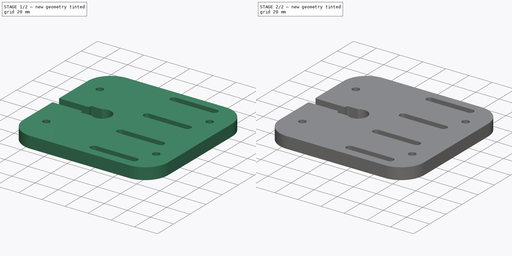
[diagram: build sequence overview — one tinted view per stage of 2, left to right]
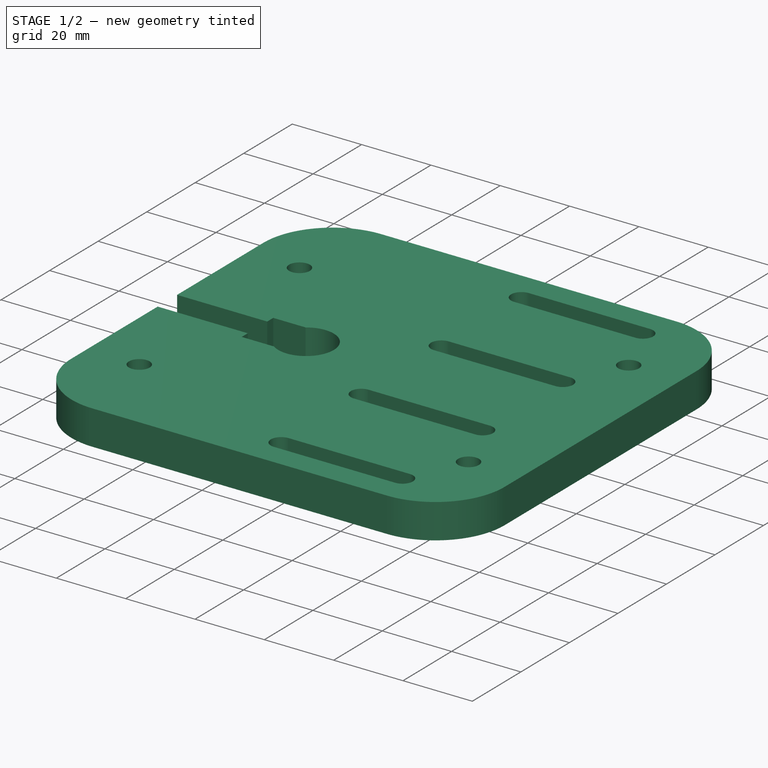
[diagram: stage 1 of 2 — iso view after this stage's code; geometry added in this stage tinted green]
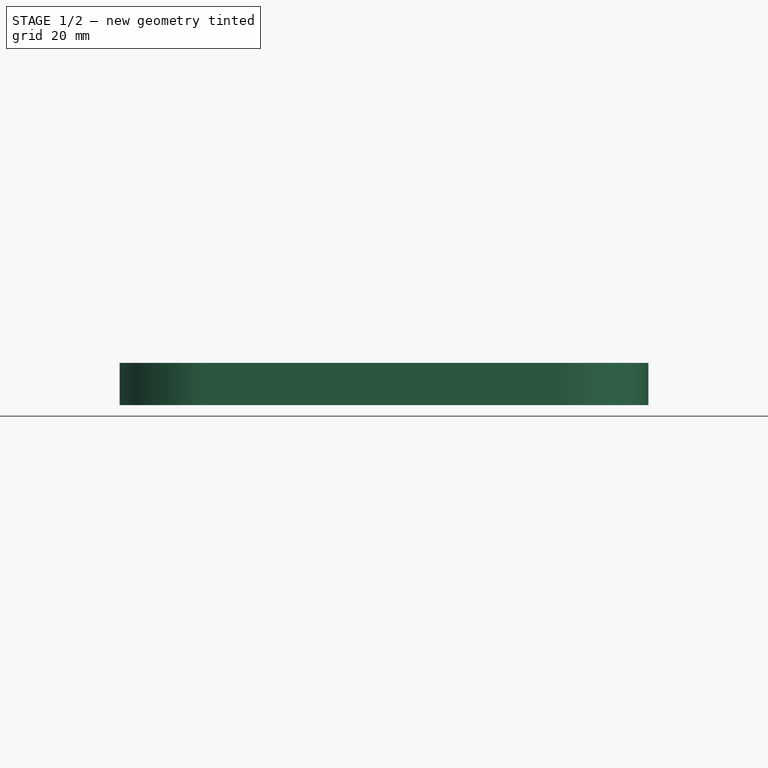
[diagram: stage 1 of 2 — front view after this stage's code; geometry added in this stage tinted green]
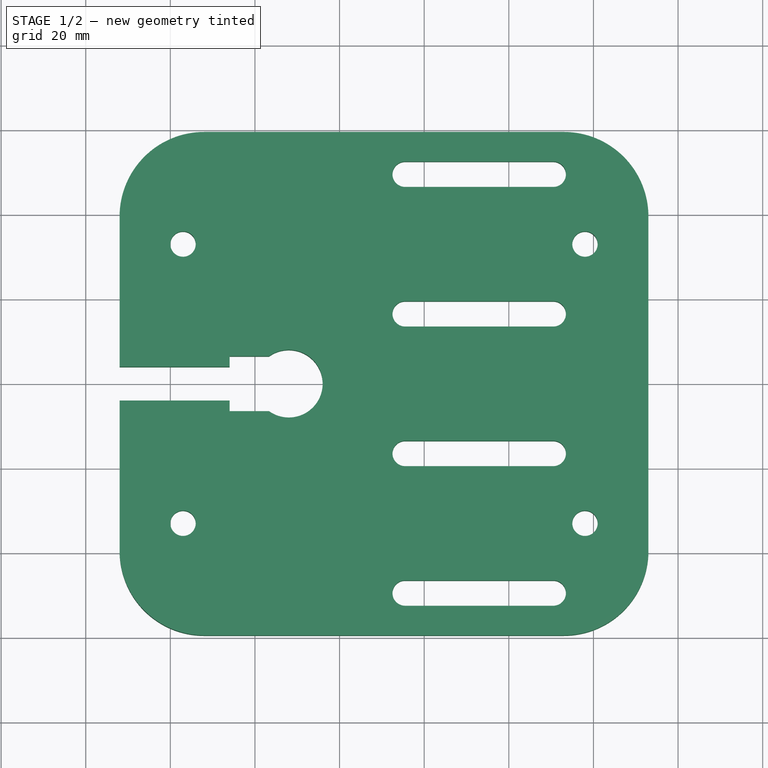
[diagram: stage 1 of 2 — top view after this stage's code; geometry added in this stage tinted green]
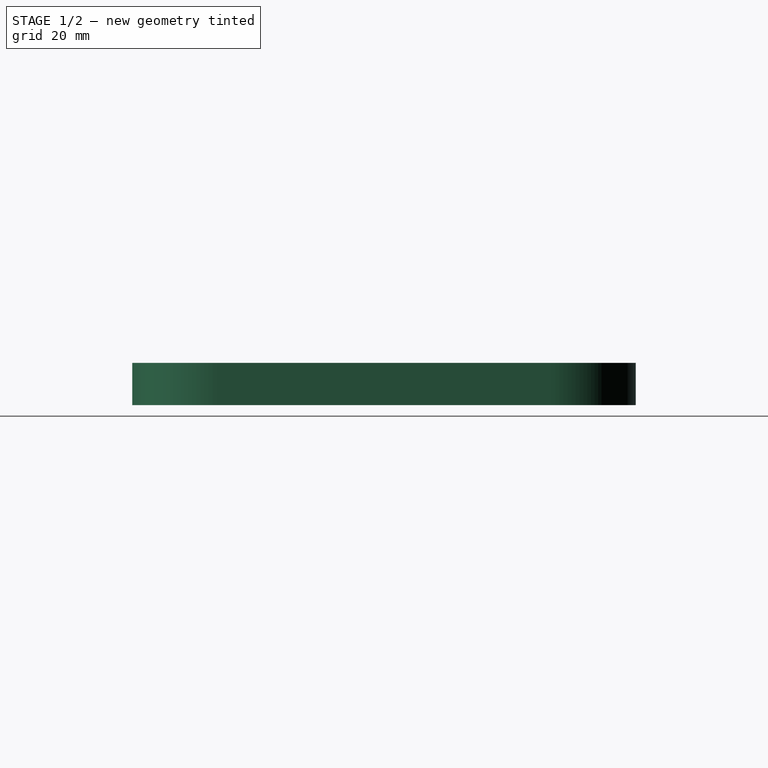
[diagram: stage 1 of 2 — right view after this stage's code; geometry added in this stage tinted green]
FCSTD DOCUMENT  (FreeCAD 0.19R24276 (Git))
Label: bldc_holder_part_5_119x125_M8
License: All rights reserved
LicenseURL: http://en.wikipedia.org/wiki/All_rights_reserved
objects: PartDesign::Fillet×3, Sketcher::SketchObject×1, PartDesign::Pad×1, PartDesign::Body×1
note: 10 computed .brp shape members not serialized (recipe doc carries the construction recipe); baked Part::Feature solids carry a one-line shape summary decoded from their .brp

FEATURE [Sketcher::SketchObject] Sketch
  FullyConstrained = false
  MapMode = 5
  Support = -> [XY_Plane]
  sketch-geometry (99):
    g0: LineSegment StartX=0 StartY=0 StartZ=0 EndX=200 EndY=0 EndZ=0
    g1: LineSegment StartX=200 StartY=0 StartZ=0 EndX=200 EndY=200 EndZ=0
    g2: LineSegment StartX=200 StartY=200 StartZ=0 EndX=0 EndY=200 EndZ=0
    g3: Circle CenterX=136 CenterY=100 CenterZ=0 NormalX=0 NormalY=0 NormalZ=1 AngleXU=0 Radius=15
    g4: Circle CenterX=136 CenterY=100 CenterZ=0 NormalX=0 NormalY=0 NormalZ=1 AngleXU=0 Radius=62.5
    g5: LineSegment StartX=153.678 StartY=117.678 StartZ=0 EndX=118.322 EndY=117.678 EndZ=0
    g6: LineSegment StartX=118.322 StartY=117.678 StartZ=0 EndX=118.322 EndY=82.3223 EndZ=0
    g7: LineSegment StartX=118.322 StartY=82.3223 StartZ=0 EndX=153.678 EndY=82.3223 EndZ=0
    g8: LineSegment StartX=153.678 StartY=82.3223 StartZ=0 EndX=153.678 EndY=117.678 EndZ=0
    g9: Circle CenterX=136 CenterY=100 CenterZ=0 NormalX=0 NormalY=0 NormalZ=1 AngleXU=0 Radius=25
    g10: Circle CenterX=118.322 CenterY=117.678 CenterZ=0 NormalX=0 NormalY=0 NormalZ=1 AngleXU=0 Radius=3
    g11: Circle CenterX=153.678 CenterY=117.678 CenterZ=0 NormalX=0 NormalY=0 NormalZ=1 AngleXU=0 Radius=3
    g12: Circle CenterX=118.322 CenterY=82.3223 CenterZ=0 NormalX=0 NormalY=0 NormalZ=1 AngleXU=0 Radius=3
    g13: Circle CenterX=153.678 CenterY=82.3223 CenterZ=0 NormalX=0 NormalY=0 NormalZ=1 AngleXU=0 Radius=3
    g14: Circle CenterX=40 CenterY=25.5 CenterZ=0 NormalX=0 NormalY=0 NormalZ=1 AngleXU=0 Radius=3
    g15: Circle CenterX=160 CenterY=25.5 CenterZ=0 NormalX=0 NormalY=0 NormalZ=1 AngleXU=0 Radius=3
    g16: Circle CenterX=80 CenterY=25.5 CenterZ=0 NormalX=0 NormalY=0 NormalZ=1 AngleXU=0 Radius=3
    g17: Circle CenterX=120 CenterY=25.5 CenterZ=0 NormalX=0 NormalY=0 NormalZ=1 AngleXU=0 Radius=3
    g18: LineSegment StartX=136 StartY=100 StartZ=0 EndX=13 EndY=100 EndZ=0
    g19: Circle CenterX=40 CenterY=174.5 CenterZ=0 NormalX=0 NormalY=0 NormalZ=1 AngleXU=0 Radius=3
    g20: Circle CenterX=80 CenterY=174.5 CenterZ=0 NormalX=0 NormalY=0 NormalZ=1 AngleXU=0 Radius=3
    g21: Circle CenterX=120 CenterY=174.5 CenterZ=0 NormalX=0 NormalY=0 NormalZ=1 AngleXU=0 Radius=3
    g22: Circle CenterX=160 CenterY=174.5 CenterZ=0 NormalX=0 NormalY=0 NormalZ=1 AngleXU=0 Radius=3
    g23: Circle CenterX=13 CenterY=149.5 CenterZ=0 NormalX=0 NormalY=0 NormalZ=1 AngleXU=0 Radius=3
    g24: Circle CenterX=13 CenterY=116.5 CenterZ=0 NormalX=0 NormalY=0 NormalZ=1 AngleXU=0 Radius=3
    g25: Circle CenterX=13 CenterY=83.5 CenterZ=0 NormalX=0 NormalY=0 NormalZ=1 AngleXU=0 Radius=3
    g26: Circle CenterX=13 CenterY=50.5 CenterZ=0 NormalX=0 NormalY=0 NormalZ=1 AngleXU=0 Radius=3
    g27: LineSegment StartX=13 StartY=100 StartZ=0 EndX=13 EndY=145.429 EndZ=0
    g28: Circle CenterX=187 CenterY=149.5 CenterZ=0 NormalX=0 NormalY=0 NormalZ=1 AngleXU=0 Radius=3
    g29: Circle CenterX=187 CenterY=116.5 CenterZ=0 NormalX=0 NormalY=0 NormalZ=1 AngleXU=0 Radius=3
    g30: Circle CenterX=187 CenterY=83.5 CenterZ=0 NormalX=0 NormalY=0 NormalZ=1 AngleXU=0 Radius=3
    g31: Circle CenterX=187 CenterY=50.5 CenterZ=0 NormalX=0 NormalY=0 NormalZ=1 AngleXU=0 Radius=3
    g32: LineSegment StartX=0 StartY=187.5 StartZ=0 EndX=200 EndY=187.5 EndZ=0
    g33: LineSegment StartX=200 StartY=187.5 StartZ=0 EndX=200 EndY=12.5 EndZ=0
    g34: LineSegment StartX=200 StartY=12.5 StartZ=0 EndX=0 EndY=12.5 EndZ=0
    g35: LineSegment StartX=0 StartY=12.5 StartZ=0 EndX=200 EndY=12.5 EndZ=0
    g36: LineSegment StartX=200 StartY=12.5 StartZ=0 EndX=200 EndY=187.5 EndZ=0
    g37: LineSegment StartX=200 StartY=187.5 StartZ=0 EndX=0 EndY=187.5 EndZ=0
    g38: LineSegment StartX=0 StartY=12.5 StartZ=0 EndX=0 EndY=187.5 EndZ=0
    g39: Circle CenterX=136 CenterY=100 CenterZ=0 NormalX=0 NormalY=0 NormalZ=1 AngleXU=0 Radius=60
    g40: LineSegment StartX=193.924 StartY=177.5 StartZ=0 EndX=6.95574 EndY=177.5 EndZ=0
    g41: LineSegment StartX=6.95574 StartY=177.5 StartZ=0 EndX=6.95574 EndY=187.5 EndZ=0
    g42: LineSegment StartX=6.95574 StartY=187.5 StartZ=0 EndX=193.924 EndY=187.5 EndZ=0
    g43: LineSegment StartX=193.924 StartY=187.5 StartZ=0 EndX=193.924 EndY=177.5 EndZ=0
    g44: LineSegment StartX=191.131 StartY=161.5 StartZ=0 EndX=6.35097 EndY=161.5 EndZ=0
    g45: LineSegment StartX=6.35097 StartY=161.5 StartZ=0 EndX=6.35097 EndY=171.5 EndZ=0
    g46: LineSegment StartX=6.35097 StartY=171.5 StartZ=0 EndX=191.131 EndY=171.5 EndZ=0
    g47: LineSegment StartX=191.131 StartY=171.5 StartZ=0 EndX=191.131 EndY=161.5 EndZ=0
    g48: LineSegment StartX=136 StartY=160 StartZ=0 EndX=192.356 EndY=160 EndZ=0
    g49: LineSegment StartX=136 StartY=100 StartZ=0 EndX=136 EndY=160 EndZ=0
    g50: ArcOfCircle CenterX=-32 CenterY=100 CenterZ=0 NormalX=0 NormalY=0 NormalZ=1 AngleXU=0 Radius=8 StartAngle=4.09002 EndAngle=8.47635
    g51: LineSegment StartX=53 StartY=159.5 StartZ=0 EndX=-72 EndY=159.5 EndZ=0
    g52: LineSegment StartX=-72 StartY=159.5 StartZ=0 EndX=-72 EndY=40.5 EndZ=0
    g53: LineSegment StartX=-72 StartY=40.5 StartZ=0 EndX=53 EndY=40.5 EndZ=0
    g54: LineSegment StartX=53 StartY=40.5 StartZ=0 EndX=53 EndY=159.5 EndZ=0
    g55: ArcOfCircle CenterX=-4.5 CenterY=149.5 CenterZ=0 NormalX=0 NormalY=0 NormalZ=1 AngleXU=0 Radius=3 StartAngle=1.5708 EndAngle=4.71239
    g56: ArcOfCircle CenterX=30.5 CenterY=149.5 CenterZ=0 NormalX=0 NormalY=0 NormalZ=1 AngleXU=0 Radius=3 StartAngle=4.71239 EndAngle=7.85398
    g57: LineSegment StartX=-4.5 StartY=146.5 StartZ=0 EndX=30.5 EndY=146.5 EndZ=0
    g58: LineSegment StartX=-4.5 StartY=152.5 StartZ=0 EndX=30.5 EndY=152.5 EndZ=0
    g59: LineSegment StartX=13 StartY=149.5 StartZ=0 EndX=13 EndY=139.5 EndZ=0
    g60: ArcOfCircle CenterX=-4.5 CenterY=116.5 CenterZ=0 NormalX=0 NormalY=0 NormalZ=1 AngleXU=0 Radius=3 StartAngle=1.5708 EndAngle=4.71239
    g61: ArcOfCircle CenterX=30.5 CenterY=116.5 CenterZ=0 NormalX=0 NormalY=0 NormalZ=1 AngleXU=0 Radius=3 StartAngle=4.71239 EndAngle=7.85398
    g62: LineSegment StartX=-4.5 StartY=113.5 StartZ=0 EndX=30.5 EndY=113.5 EndZ=0
    g63: LineSegment StartX=-4.5 StartY=119.5 StartZ=0 EndX=30.5 EndY=119.5 EndZ=0
    g64: LineSegment StartX=13 StartY=116.5 StartZ=0 EndX=13 EndY=106.5 EndZ=0
    g65: Circle CenterX=13 CenterY=83.5 CenterZ=0 NormalX=0 NormalY=0 NormalZ=1 AngleXU=0 Radius=3
    g66: ArcOfCircle CenterX=-4.5 CenterY=83.5 CenterZ=0 NormalX=0 NormalY=0 NormalZ=1 AngleXU=0 Radius=3 StartAngle=1.5708 EndAngle=4.71239
    g67: ArcOfCircle CenterX=30.5 CenterY=83.5 CenterZ=0 NormalX=0 NormalY=0 NormalZ=1 AngleXU=0 Radius=3 StartAngle=4.71239 EndAngle=7.85398
    g68: LineSegment StartX=-4.5 StartY=80.5 StartZ=0 EndX=30.5 EndY=80.5 EndZ=0
    g69: LineSegment StartX=-4.5 StartY=86.5 StartZ=0 EndX=30.5 EndY=86.5 EndZ=0
    g70: LineSegment StartX=13 StartY=83.5 StartZ=0 EndX=13 EndY=73.5 EndZ=0
    g71: Circle CenterX=13 CenterY=50.5 CenterZ=0 NormalX=0 NormalY=0 NormalZ=1 AngleXU=0 Radius=3
    g72: ArcOfCircle CenterX=-4.5 CenterY=50.5 CenterZ=0 NormalX=0 NormalY=0 NormalZ=1 AngleXU=0 Radius=3 StartAngle=1.5708 EndAngle=4.71239
    g73: ArcOfCircle CenterX=30.5 CenterY=50.5 CenterZ=0 NormalX=0 NormalY=0 NormalZ=1 AngleXU=0 Radius=3 StartAngle=4.71239 EndAngle=7.85398
    g74: LineSegment StartX=-4.5 StartY=47.5 StartZ=0 EndX=30.5 EndY=47.5 EndZ=0
    g75: LineSegment StartX=-4.5 StartY=53.5 StartZ=0 EndX=30.5 EndY=53.5 EndZ=0
    g76: LineSegment StartX=13 StartY=50.5 StartZ=0 EndX=13 EndY=40.5 EndZ=0
    g77: Circle CenterX=-57 CenterY=133 CenterZ=0 NormalX=0 NormalY=0 NormalZ=1 AngleXU=0 Radius=3
    g78: Circle CenterX=-57 CenterY=67 CenterZ=0 NormalX=0 NormalY=0 NormalZ=1 AngleXU=0 Radius=3
    g79: Circle CenterX=38 CenterY=133 CenterZ=0 NormalX=0 NormalY=0 NormalZ=1 AngleXU=0 Radius=3
    g80: Circle CenterX=38 CenterY=67 CenterZ=0 NormalX=0 NormalY=0 NormalZ=1 AngleXU=0 Radius=3
    g81: LineSegment StartX=-46 StartY=106.5 StartZ=0 EndX=-32 EndY=106.5 EndZ=0
    g82: LineSegment StartX=-32 StartY=106.5 StartZ=0 EndX=-32 EndY=93.5 EndZ=0
    g83: LineSegment StartX=-32 StartY=93.5 StartZ=0 EndX=-46 EndY=93.5 EndZ=0
    g84: LineSegment StartX=-46 StartY=93.5 StartZ=0 EndX=-46 EndY=106.5 EndZ=0
    g85: LineSegment StartX=-77.0154 StartY=104 StartZ=0 EndX=-43.8252 EndY=104 EndZ=0
    g86: LineSegment StartX=-43.8252 StartY=104 StartZ=0 EndX=-43.8252 EndY=96 EndZ=0
    g87: LineSegment StartX=-43.8252 StartY=96 StartZ=0 EndX=-77.0154 EndY=96 EndZ=0
    g88: LineSegment StartX=-77.0154 StartY=96 StartZ=0 EndX=-77.0154 EndY=104 EndZ=0
    g89: LineSegment StartX=-32 StartY=100 StartZ=0 EndX=-43.8252 EndY=100 EndZ=0
    g90: LineSegment StartX=-32 StartY=100 StartZ=0 EndX=-24 EndY=100 EndZ=0
    g91: LineSegment StartX=-46 StartY=106.5 StartZ=0 EndX=-36.6637 EndY=106.5 EndZ=0
    g92: LineSegment StartX=-46 StartY=93.5 StartZ=0 EndX=-36.6637 EndY=93.5 EndZ=0
    g93: LineSegment StartX=-46 StartY=93.5 StartZ=0 EndX=-46 EndY=96 EndZ=0
    g94: LineSegment StartX=-46 StartY=106.5 StartZ=0 EndX=-46 EndY=104 EndZ=0
    g95: LineSegment StartX=-46 StartY=96 StartZ=0 EndX=-72 EndY=96 EndZ=0
    g96: LineSegment StartX=-46 StartY=104 StartZ=0 EndX=-72 EndY=104 EndZ=0
    g97: LineSegment StartX=-72 StartY=159.5 StartZ=0 EndX=-72 EndY=104 EndZ=0
    g98: LineSegment StartX=-72 StartY=96 StartZ=0 EndX=-72 EndY=40.5 EndZ=0
  constraints (260):
    c: Coincident(g0,g1)
    c: Coincident(g1,g2)
    c: Horizontal(g0)
    c: Horizontal(g2)
    c: Vertical(g1)
    c: Coincident(g0,g-1)
    c: Equal(g1,g2)
    c: DistanceX(g0,g0) = 200
    c: Coincident(g4,g3)
    c: Diameter(g4) = 125
    c: DistanceX(g3,g1) = 64
    c: DistanceY(g0,g3) = 100
    c: Diameter(g3) = 30
    c: Coincident(g5,g6)
    c: Coincident(g6,g7)
    c: Coincident(g7,g8)
    c: Coincident(g8,g5)
    c: Equal(g5,g6)
    c: Equal(g5,g7)
    c: Equal(g5,g8)
    c: PointOnObject(g5,g9)
    c: PointOnObject(g6,g9)
    c: PointOnObject(g7,g9)
    c: PointOnObject(g8,g9)
    c: Coincident(g9,g3)
    c: Horizontal(g5)
    c: Diameter(g9) = 50
    c: Coincident(g10,g5)
    c: Coincident(g11,g5)
    c: Coincident(g12,g6)
    c: Coincident(g13,g7)
    c: Diameter(g10) = 6
    c: Equal(g10,g12)
    c: Equal(g10,g11)
    c: Equal(g10,g13)
    c: Horizontal(g14,g16)
    c: Horizontal(g16,g17)
    c: Horizontal(g17,g15)
    c: Equal(g14,g16)
    c: Equal(g14,g15)
    c: DistanceX(g14,g16) = 40
    c: DistanceX(g16,g17) = 40
    c: DistanceX(g17,g15) = 40
    c: DistanceX(g0,g14) = 40
    c: Horizontal(g18)
    c: Diameter(g19) = 6
    c: Equal(g19,g20)
    c: Equal(g19,g21)
    c: Equal(g19,g22)
    c: Vertical(g19,g14)
    c: Vertical(g20,g16)
    c: Vertical(g21,g17)
    c: Vertical(g22,g15)
    c: Horizontal(g19,g20)
    c: Horizontal(g21,g22)
    c: Horizontal(g20,g21)
    c: Vertical(g26,g25)
    c: Vertical(g25,g24)
    c: Vertical(g24,g23)
    c: Equal(g23,g24)
    c: Equal(g24,g25)
    c: Equal(g25,g26)
    c: Equal(g26,g19)
    c: DistanceY(g24,g23) = 33
    c: DistanceY(g26,g25) = 33
    c: DistanceX(g0,g26) = 13
    c: Coincident(g27,g18)
    c: Vertical(g27)
    c: Equal(g28,g29)
    c: Equal(g29,g30)
    c: Equal(g30,g31)
    c: Horizontal(g28,g23)
    c: Horizontal(g24,g29)
    c: Horizontal(g25,g30)
    c: Horizontal(g26,g31)
    c: Vertical(g31,g30)
    c: Vertical(g30,g29)
    c: Vertical(g29,g28)
    c: DistanceX(g31,g0) = 13
    c: Equal(g28,g22)
    c: Equal(g16,g17)
    c: Equal(g15,g26)
    c: Coincident(g32,g33)
    c: Coincident(g33,g34)
    c: Horizontal(g32)
    c: Horizontal(g34)
    c: Vertical(g33)
    c: Vertical(g33,g0)
    c: Vertical(g0,g34)
    c: DistanceY(g0,g34) = 12.5
    c: DistanceY(g32,g2) = 12.5
    c: DistanceY(g19,g32) = 13
    c: DistanceY(g34,g14) = 13
    c: Coincident(g35,g34)
    c: Coincident(g36,g35)
    c: Coincident(g36,g32)
    c: Coincident(g37,g36)
    c: Coincident(g37,g32)
    c: Coincident(g35,g33)
    c: Coincident(g18,g3)
    c: Symmetric(g25,g24,g18)
    c: DistanceY(g25,g24) = 33
    c: DistanceY(g35,g36) = 175
    c: Vertical(g37,g2)
    c: Coincident(g38,g35)
    c: Coincident(g38,g37)
    c: Coincident(g39,g3)
    c: Diameter(g39) = 120
    c: Coincident(g40,g41)
    c: Coincident(g41,g42)
    c: Coincident(g42,g43)
    c: Coincident(g43,g40)
    c: Horizontal(g40)
    c: Horizontal(g42)
    c: Vertical(g41)
    c: Vertical(g43)
    c: Coincident(g44,g45)
    c: Coincident(g45,g46)
    c: Coincident(g46,g47)
    c: Coincident(g47,g44)
    c: Horizontal(g44)
    c: Horizontal(g46)
    c: Vertical(g45)
    c: Vertical(g47)
    c: DistanceY(g43,g43) = 10
    c: DistanceY(g47,g47) = 10
    c: Horizontal(g42,g36)
    c: DistanceY(g46,g40) = 6
    c: PointOnObject(g48,g39)
    c: Horizontal(g48)
    c: Coincident(g49,g3)
    c: Coincident(g49,g48)
    c: Vertical(g49)
    c: Horizontal(g50,g18)
    c: DistanceX(g50,g3) = 168
    c: Diameter(g50) = 16
    c: Coincident(g52,g53)
    c: Coincident(g53,g54)
    c: Coincident(g54,g51)
    c: Horizontal(g51)
    c: Horizontal(g53)
    c: Vertical(g52)
    c: Vertical(g54)
    c: Coincident(g51,g52)
    c: DistanceY(g23,g51) = 10
    c: DistanceY(g53,g26) = 10
    c: Tangent(g55,g58) = 1.5708
    c: Tangent(g55,g57) = -1.5708
    c: Tangent(g57,g56) = -1.5708
    c: Tangent(g58,g56) = 1.5708
    c: Horizontal(g57)
    c: Equal(g55,g56)
    c: Diameter(g55) = 6
    c: DistanceX(g55,g56) = 35
    c: Vertical(g59)
    c: Symmetric(g55,g56,g59)
    c: DistanceY(g59,g56) = 10
    c: Tangent(g60,g63) = 1.5708
    c: Tangent(g60,g62) = -1.5708
    c: Tangent(g62,g61) = -1.5708
    c: Tangent(g63,g61) = 1.5708
    c: Horizontal(g62)
    c: Equal(g60,g61)
    c: Equal(g55,g60) = 6
    c: DistanceX(g60,g61) = 35
    c: Vertical(g64)
    c: Symmetric(g60,g61,g64)
    c: DistanceY(g64,g61) = 10
    c: Coincident(g59,g23)
    c: Coincident(g64,g24)
    c: DistanceX(g26,g53) = 40
    c: DistanceX(g52,g50) = 40
    c: Tangent(g66,g69) = 1.5708
    c: Tangent(g66,g68) = -1.5708
    c: Tangent(g68,g67) = -1.5708
    c: Tangent(g69,g67) = 1.5708
    c: Horizontal(g68)
    c: Equal(g66,g67)
    c: DistanceX(g66,g67) = 35
    c: Vertical(g70)
    c: Symmetric(g66,g67,g70)
    c: DistanceY(g70,g67) = 10
    c: Coincident(g70,g65)
    c: Coincident(g70,g25)
    c: Tangent(g72,g75) = 1.5708
    c: Tangent(g72,g74) = -1.5708
    c: Tangent(g74,g73) = -1.5708
    c: Tangent(g75,g73) = 1.5708
    c: Horizontal(g74)
    c: Equal(g72,g73)
    c: DistanceX(g72,g73) = 35
    c: Vertical(g76)
    c: Symmetric(g72,g73,g76)
    c: DistanceY(g76,g73) = 10
    c: Coincident(g76,g71)
    c: Coincident(g76,g26)
    c: Equal(g60,g66)
    c: Equal(g66,g72)
    c: Horizontal(g80,g78)
    c: Horizontal(g77,g79)
    c: Diameter(g77) = 6
    c: Equal(g77,g79)
    c: Equal(g77,g78)
    c: Equal(g77,g80)
    c: DistanceY(g52,g78) = 26.5
    c: DistanceY(g77,g51) = 26.5
    c: DistanceX(g52,g78) = 15
    c: Vertical(g78,g77)
    c: Vertical(g79,g80)
    c: DistanceX(g79,g51) = 15
    c: Coincident(g81,g82)
    c: Coincident(g82,g83)
    c: Coincident(g83,g84)
    c: Coincident(g84,g81)
    c: Horizontal(g81)
    c: Horizontal(g83)
    c: Vertical(g82)
    c: Vertical(g84)
    c: Coincident(g85,g86)
    c: Coincident(g86,g87)
    c: Coincident(g87,g88)
    c: Coincident(g88,g85)
    c: Horizontal(g85)
    c: Horizontal(g87)
    c: Vertical(g86)
    c: Vertical(g88)
    c: Coincident(g89,g50)
    c: Horizontal(g89)
    c: Symmetric(g82,g81,g50)
    c: Symmetric(g86,g85,g89)
    c: DistanceY(g88,g88) = 8
    c: DistanceY(g84,g84) = 13
    c: Coincident(g90,g50)
    c: PointOnObject(g90,g50)
    c: Horizontal(g90)
    c: DistanceX(g81,g50) = 14
    c: Coincident(g91,g81)
    c: Coincident(g92,g83)
    c: PointOnObject(g92,g50)
    c: PointOnObject(g91,g50)
    c: Horizontal(g91)
    c: Horizontal(g92)
    c: Coincident(g93,g92)
    c: Coincident(g94,g91)
    c: PointOnObject(g94,g85)
    c: PointOnObject(g93,g87)
    c: Vertical(g94)
    c: Vertical(g93)
    c: Coincident(g95,g93)
    c: Coincident(g96,g94)
    c: PointOnObject(g96,g52)
    c: PointOnObject(g95,g52)
    c: Horizontal(g95)
    c: Horizontal(g96)
    c: Coincident(g97,g51)
    c: Coincident(g98,g95)
    c: Coincident(g53,g98)
    c: Coincident(g97,g96)
    c: PointOnObject(g50,g83)
    c: PointOnObject(g50,g81)
FEATURE [PartDesign::Pad] Pad
  Direction = (1,1,1)
  Length = 10
  Length2 = 100
  Profile = -> Sketch
  Type = 0
FEATURE [PartDesign::Fillet] Fillet
  Base = -> Pad [Edge17,Edge23,Edge26,Edge20]
  BaseFeature = -> Pad
  Radius = 20
  SupportTransform = false
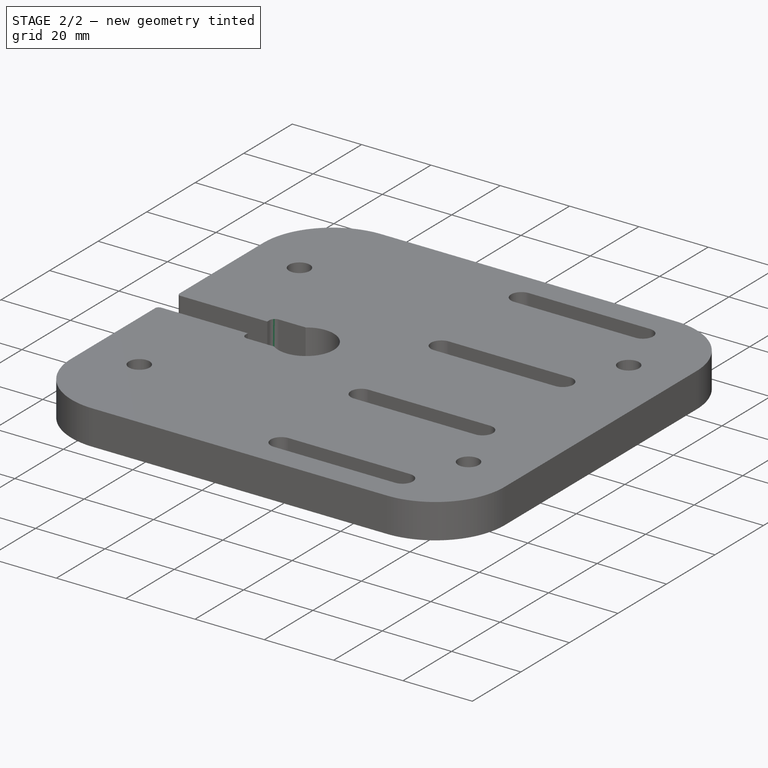
[diagram: stage 2 of 2 — iso view after this stage's code; geometry added in this stage tinted green]
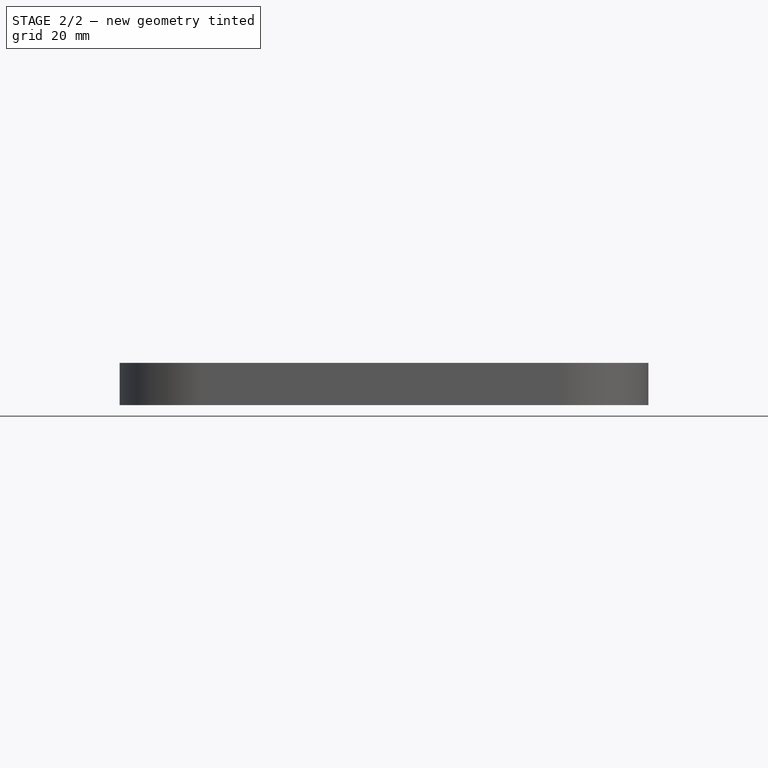
[diagram: stage 2 of 2 — front view after this stage's code; geometry added in this stage tinted green]
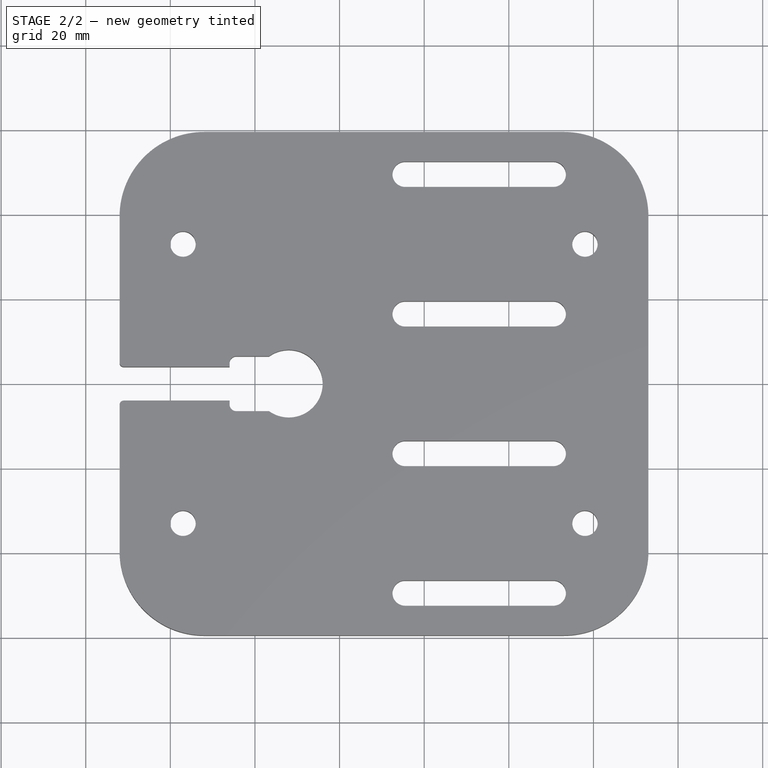
[diagram: stage 2 of 2 — top view after this stage's code; geometry added in this stage tinted green]
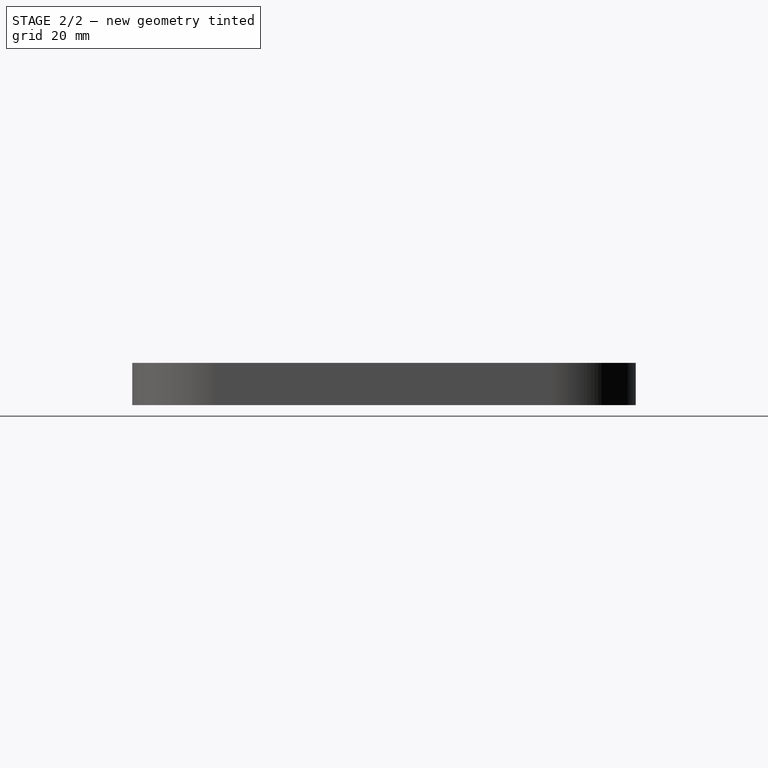
[diagram: stage 2 of 2 — right view after this stage's code; geometry added in this stage tinted green]
FEATURE [PartDesign::Fillet] Fillet001
  Base = -> Fillet [Edge78,Edge84]
  BaseFeature = -> Fillet
  Radius = 1.6
  SupportTransform = false
FEATURE [PartDesign::Fillet] Fillet002
  Base = -> Fillet001 [Edge44,Edge66]
  BaseFeature = -> Fillet001
  Radius = 1
  SupportTransform = false
FEATURE [PartDesign::Body] Body
  Group = -> [Sketch,Pad,Fillet,Fillet001,Fillet002]
  Origin = -> Origin
  Tip = -> Fillet002
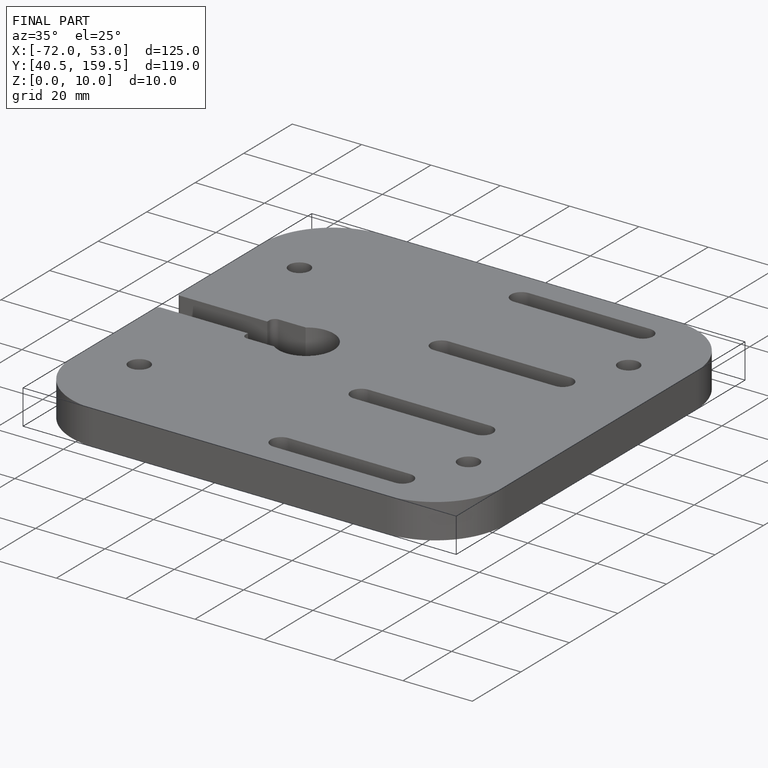
[diagram: finished part — iso view with bounding-box wireframe]
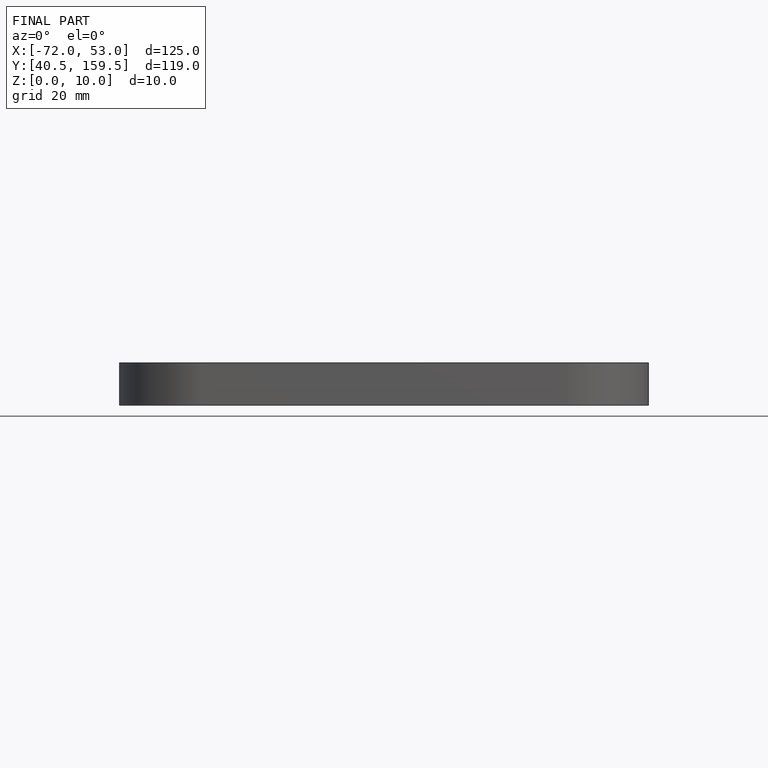
[diagram: finished part — front view with bounding-box wireframe]
